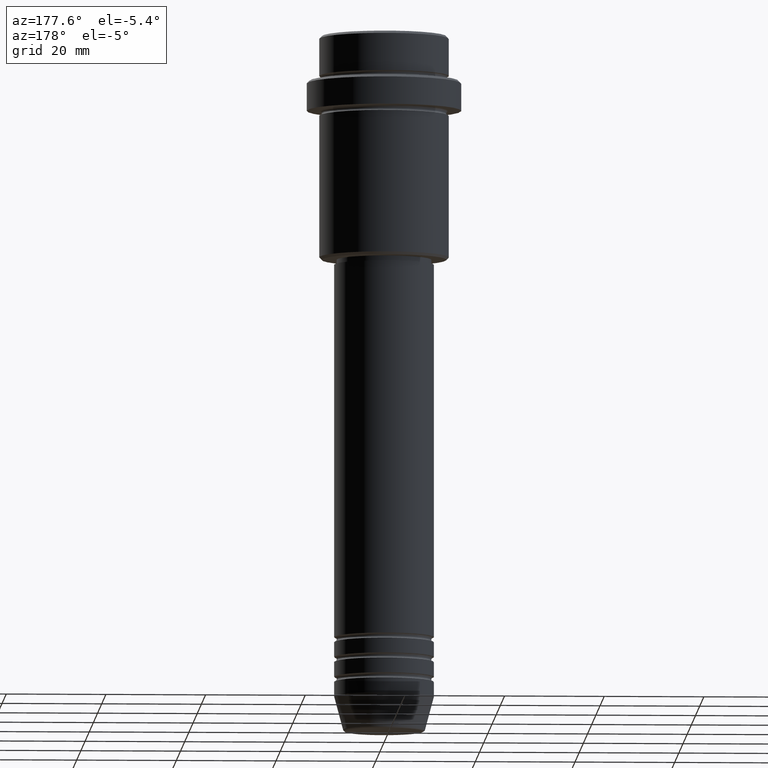
[diagram: clean part render]
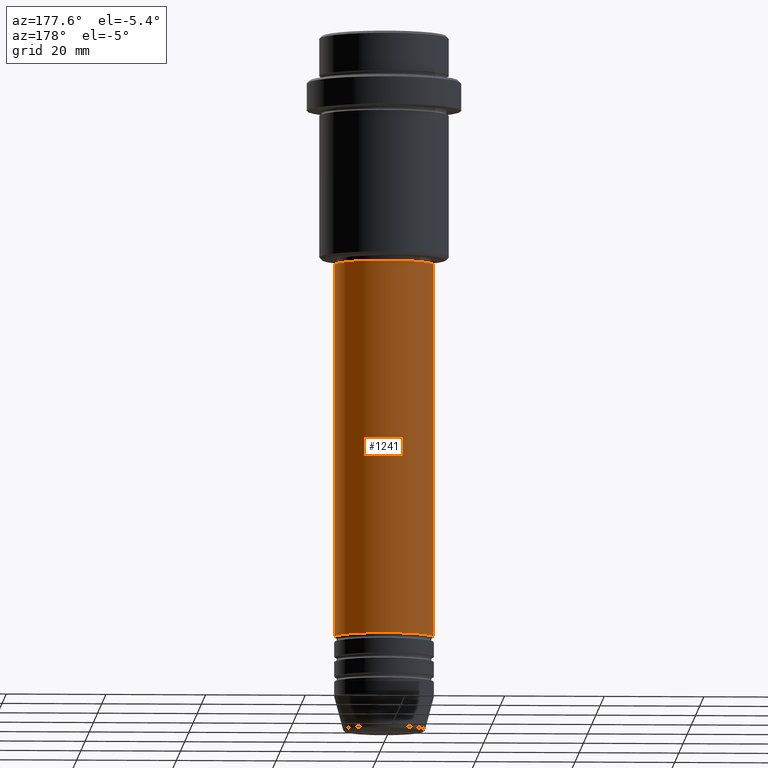
[diagram: same view with one face highlighted and labeled with its STEP entity id]
A machine part, auxiliary view. The second image highlights one B-rep face of the part: STEP entity #1241.
In plain terms, the highlighted cylindrical surface (partial cylindrical patch) has radius 10 mm, axis along (-0, -0, 1).
Its self-contained STEP definition (entity closure, byte-faithful):
#5 = DIRECTION ( 'NONE',  ( -0.000000000000000000, -0.000000000000000000, 1.000000000000000000 ) ) ;
#129 = ORIENTED_EDGE ( 'NONE', *, *, #1209, .F. ) ;
#165 = VERTEX_POINT ( 'NONE', #504 ) ;
#190 = DIRECTION ( 'NONE',  ( 1.000000000000000000, 0.000000000000000000, 0.000000000000000000 ) ) ;
#192 = EDGE_CURVE ( 'NONE', #627, #898, #508, .T. ) ;
#205 = VECTOR ( 'NONE', #672, 1000.000000000000000 ) ;
#248 = VECTOR ( 'NONE', #5, 1000.000000000000000 ) ;
#274 = EDGE_CURVE ( 'NONE', #627, #834, #1400, .T. ) ;
#277 = CIRCLE ( 'NONE', #487, 10.00000000000000178 ) ;
#280 = CYLINDRICAL_SURFACE ( 'NONE', #607, 10.00000000000000178 ) ;
#289 = EDGE_LOOP ( 'NONE', ( #1238, #916, #129, #1260 ) ) ;
#392 = CARTESIAN_POINT ( 'NONE',  ( 10.00000000000000178, 0.000000000000000000, -46.00000000000001421 ) ) ;
#422 = CARTESIAN_POINT ( 'NONE',  ( 10.00000000000000178, 0.000000000000000000, 0.000000000000000000 ) ) ;
#474 = EDGE_CURVE ( 'NONE', #898, #165, #791, .T. ) ;
#487 = AXIS2_PLACEMENT_3D ( 'NONE', #641, #1284, #190 ) ;
#496 = CARTESIAN_POINT ( 'NONE',  ( 0.000000000000000000, 0.000000000000000000, -120.9999999999999005 ) ) ;
#504 = CARTESIAN_POINT ( 'NONE',  ( -10.00000000000000178, 1.224646799147353454E-15, -46.00000000000001421 ) ) ;
#508 = CIRCLE ( 'NONE', #1357, 10.00000000000000000 ) ;
#510 = CARTESIAN_POINT ( 'NONE',  ( 0.000000000000000000, 0.000000000000000000, 0.000000000000000000 ) ) ;
#590 = CARTESIAN_POINT ( 'NONE',  ( 10.00000000000000000, 0.000000000000000000, -120.9999999999999005 ) ) ;
#607 = AXIS2_PLACEMENT_3D ( 'NONE', #510, #1162, #1391 ) ;
#627 = VERTEX_POINT ( 'NONE', #590 ) ;
#641 = CARTESIAN_POINT ( 'NONE',  ( 0.000000000000000000, 0.000000000000000000, -46.00000000000001421 ) ) ;
#672 = DIRECTION ( 'NONE',  ( -0.000000000000000000, -0.000000000000000000, 1.000000000000000000 ) ) ;
#791 = LINE ( 'NONE', #1006, #205 ) ;
#823 = FACE_OUTER_BOUND ( 'NONE', #289, .T. ) ;
#834 = VERTEX_POINT ( 'NONE', #392 ) ;
#898 = VERTEX_POINT ( 'NONE', #1277 ) ;
#916 = ORIENTED_EDGE ( 'NONE', *, *, #474, .T. ) ;
#919 = DIRECTION ( 'NONE',  ( 1.000000000000000000, 0.000000000000000000, 0.000000000000000000 ) ) ;
#1006 = CARTESIAN_POINT ( 'NONE',  ( -10.00000000000000178, 1.224646799147353454E-15, 0.000000000000000000 ) ) ;
#1155 = DIRECTION ( 'NONE',  ( -0.000000000000000000, -0.000000000000000000, 1.000000000000000000 ) ) ;
#1162 = DIRECTION ( 'NONE',  ( -0.000000000000000000, -0.000000000000000000, 1.000000000000000000 ) ) ;
#1209 = EDGE_CURVE ( 'NONE', #834, #165, #277, .T. ) ;
#1238 = ORIENTED_EDGE ( 'NONE', *, *, #192, .T. ) ;
#1241 = ADVANCED_FACE ( 'NONE', ( #823 ), #280, .T. ) ;
#1260 = ORIENTED_EDGE ( 'NONE', *, *, #274, .F. ) ;
#1277 = CARTESIAN_POINT ( 'NONE',  ( -10.00000000000000000, 1.224646799147353256E-15, -120.9999999999999005 ) ) ;
#1284 = DIRECTION ( 'NONE',  ( -0.000000000000000000, -0.000000000000000000, 1.000000000000000000 ) ) ;
#1357 = AXIS2_PLACEMENT_3D ( 'NONE', #496, #1155, #919 ) ;
#1391 = DIRECTION ( 'NONE',  ( 1.000000000000000000, 0.000000000000000000, 0.000000000000000000 ) ) ;
#1400 = LINE ( 'NONE', #422, #248 ) ;